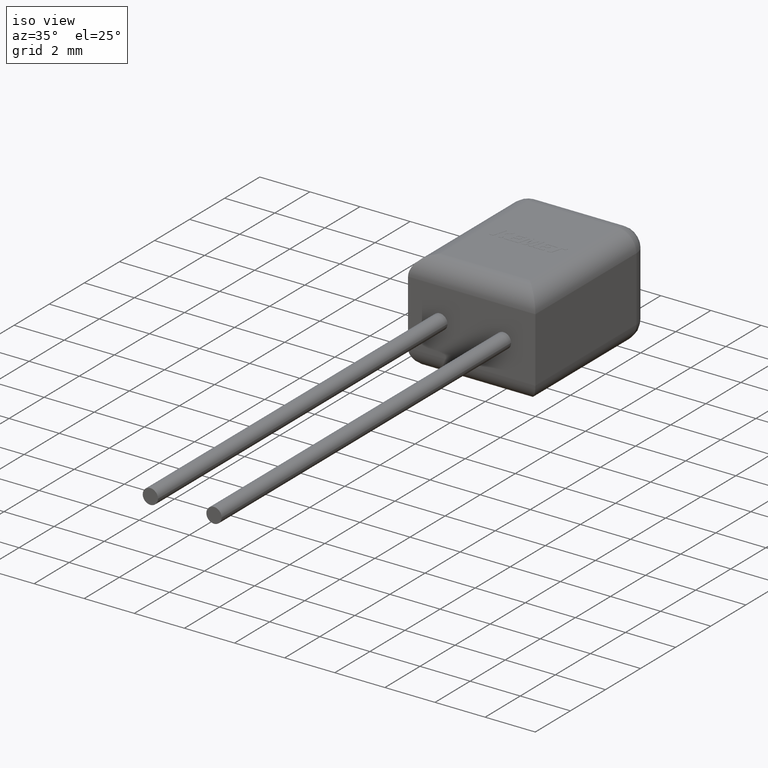
[diagram: clean part render]
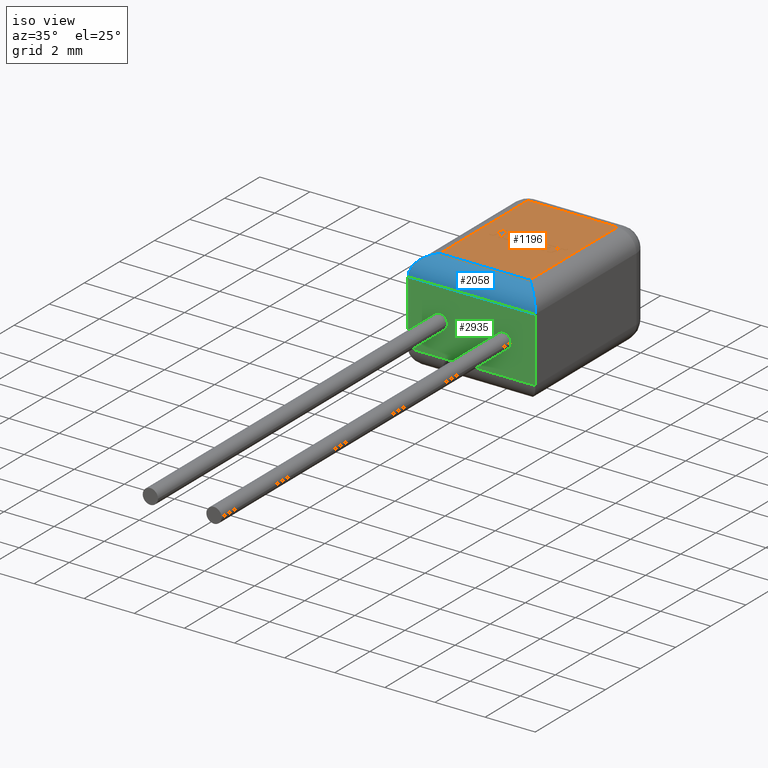
[diagram: same view with three faces highlighted in distinct colors, each labeled with its STEP entity id]
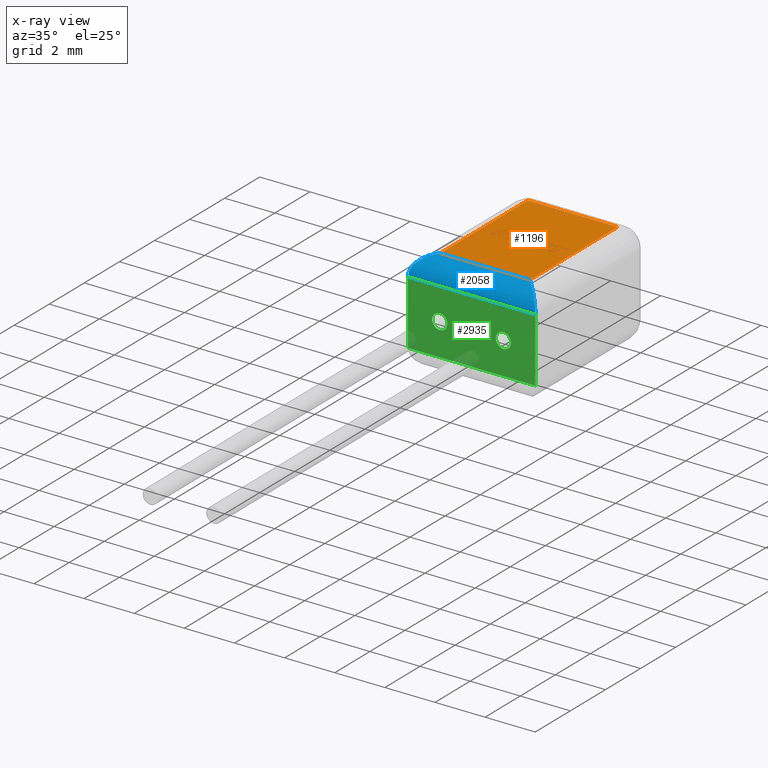
[diagram: x-ray of the same camera — body ghosted, the three highlighted faces saturated]
A machine part, iso view with three faces highlighted in distinct colors.
The next image is the same camera in x-ray (body ghosted, the three faces saturated) — at least one of them is partly hidden behind the body in this view.
Their STEP definitions:

[orange] entity #1196 — the highlighted planar face has unit normal (0, 0, -1).
#74 = EDGE_CURVE ( 'NONE', #2455, #2540, #3539, .T. ) ;
#107 = VERTEX_POINT ( 'NONE', #249 ) ;
#171 = LINE ( 'NONE', #1266, #1117 ) ;
#211 = AXIS2_PLACEMENT_3D ( 'NONE', #2613, #2057, #2303 ) ;
#249 = CARTESIAN_POINT ( 'NONE',  ( -4.330000000000000100, 5.755759999999998700, 4.070000000000000300 ) ) ;
#268 = FACE_OUTER_BOUND ( 'NONE', #2940, .T. ) ;
#492 = VERTEX_POINT ( 'NONE', #2757 ) ;
#628 = EDGE_CURVE ( 'NONE', #492, #107, #1656, .T. ) ;
#646 = LINE ( 'NONE', #1183, #3622 ) ;
#810 = ORIENTED_EDGE ( 'NONE', *, *, #628, .T. ) ;
#909 = ORIENTED_EDGE ( 'NONE', *, *, #1618, .T. ) ;
#1117 = VECTOR ( 'NONE', #2722, 1000.000000000000000 ) ;
#1141 = ORIENTED_EDGE ( 'NONE', *, *, #2892, .T. ) ;
#1183 = CARTESIAN_POINT ( 'NONE',  ( -4.330000000000000100, 5.772847946265752500E-016, 4.070000000000000300 ) ) ;
#1196 = ADVANCED_FACE ( 'NONE', ( #268 ), #2327, .F. ) ;
#1266 = CARTESIAN_POINT ( 'NONE',  ( -0.7500000000000000000, 0.0000000000000000000, 4.070000000000000300 ) ) ;
#1450 = DIRECTION ( 'NONE',  ( 1.000000000000000000, 1.224646799147353200E-016, 0.0000000000000000000 ) ) ;
#1618 = EDGE_CURVE ( 'NONE', #107, #2455, #646, .T. ) ;
#1656 = LINE ( 'NONE', #2932, #2163 ) ;
#1731 = CARTESIAN_POINT ( 'NONE',  ( -9.184850993605149700E-017, 0.7500000000000000000, 4.070000000000000300 ) ) ;
#2029 = DIRECTION ( 'NONE',  ( -1.333221234703407000E-016, -1.000000000000000000, 0.0000000000000000000 ) ) ;
#2055 = CARTESIAN_POINT ( 'NONE',  ( -4.330000000000000100, 0.7499999999999994400, 4.070000000000000300 ) ) ;
#2057 = DIRECTION ( 'NONE',  ( 0.0000000000000000000, 0.0000000000000000000, -1.000000000000000000 ) ) ;
#2112 = CARTESIAN_POINT ( 'NONE',  ( -0.7500000000000000000, 0.7499999999999998900, 4.070000000000000300 ) ) ;
#2163 = VECTOR ( 'NONE', #3228, 1000.000000000000000 ) ;
#2303 = DIRECTION ( 'NONE',  ( -1.000000000000000000, 0.0000000000000000000, -0.0000000000000000000 ) ) ;
#2327 = PLANE ( 'NONE',  #211 ) ;
#2455 = VERTEX_POINT ( 'NONE', #2055 ) ;
#2540 = VERTEX_POINT ( 'NONE', #2112 ) ;
#2613 = CARTESIAN_POINT ( 'NONE',  ( 0.0000000000000000000, 0.0000000000000000000, 4.070000000000000300 ) ) ;
#2722 = DIRECTION ( 'NONE',  ( 0.0000000000000000000, 1.000000000000000000, 0.0000000000000000000 ) ) ;
#2754 = VECTOR ( 'NONE', #1450, 1000.000000000000000 ) ;
#2757 = CARTESIAN_POINT ( 'NONE',  ( -0.7500000000000000000, 5.755759999999998700, 4.070000000000000300 ) ) ;
#2892 = EDGE_CURVE ( 'NONE', #2540, #492, #171, .T. ) ;
#2932 = CARTESIAN_POINT ( 'NONE',  ( 0.0000000000000000000, 5.755759999999998700, 4.070000000000000300 ) ) ;
#2940 = EDGE_LOOP ( 'NONE', ( #909, #3556, #1141, #810 ) ) ;
#3228 = DIRECTION ( 'NONE',  ( -1.000000000000000000, 0.0000000000000000000, 0.0000000000000000000 ) ) ;
#3539 = LINE ( 'NONE', #1731, #2754 ) ;
#3556 = ORIENTED_EDGE ( 'NONE', *, *, #74, .T. ) ;
#3622 = VECTOR ( 'NONE', #2029, 1000.000000000000000 ) ;

[blue] entity #2058 — the highlighted cylindrical surface (edge-blend (fillet) strip) has radius 0.75 mm, axis along (1, 0, 0).
#74 = EDGE_CURVE ( 'NONE', #2455, #2540, #3539, .T. ) ;
#81 = EDGE_CURVE ( 'NONE', #2141, #3475, #2578, .T. ) ;
#163 = CARTESIAN_POINT ( 'NONE',  ( -9.184850993605149700E-017, 0.7500000000000000000, 3.320000000000000700 ) ) ;
#438 = CARTESIAN_POINT ( 'NONE',  ( -5.080000000000000100, -6.221205739668554300E-016, 3.320000000000000700 ) ) ;
#517 = AXIS2_PLACEMENT_3D ( 'NONE', #163, #2489, #3274 ) ;
#545 = CARTESIAN_POINT ( 'NONE',  ( -4.330000000000000100, 0.7499999999999994400, 4.070000000000000300 ) ) ;
#554 = CARTESIAN_POINT ( 'NONE',  ( -5.080000000000000100, -5.421010862427522200E-016, 3.759339828220179300 ) ) ;
#579 = CARTESIAN_POINT ( 'NONE',  ( -5.080000000000000100, -6.221205739668554300E-016, 3.320000000000000700 ) ) ;
#600 = CARTESIAN_POINT ( 'NONE',  ( 0.0000000000000000000, 0.0000000000000000000, 3.320000000000000700 ) ) ;
#992 = ORIENTED_EDGE ( 'NONE', *, *, #3229, .T. ) ;
#1168 = CARTESIAN_POINT ( 'NONE',  ( -0.3106601717798211900, 0.3106601717798211400, 4.070000000000000300 ) ) ;
#1333 = EDGE_LOOP ( 'NONE', ( #992, #3597, #2475, #2603 ) ) ;
#1450 = DIRECTION ( 'NONE',  ( 1.000000000000000000, 1.224646799147353200E-016, 0.0000000000000000000 ) ) ;
#1646 =( BOUNDED_CURVE ( )  B_SPLINE_CURVE ( 3, ( #600, #2374, #1168, #2610 ),
 .UNSPECIFIED., .F., .T. ) 
 B_SPLINE_CURVE_WITH_KNOTS ( ( 4, 4 ),
 ( 3.141592653589793100, 4.712388980384689700 ),
 .UNSPECIFIED. ) 
 CURVE ( )  GEOMETRIC_REPRESENTATION_ITEM ( )  RATIONAL_B_SPLINE_CURVE ( ( 1.000000000000000000, 0.8047378541243649400, 0.8047378541243649400, 1.000000000000000000 ) ) 
 REPRESENTATION_ITEM ( '' )  );
#1661 = EDGE_CURVE ( 'NONE', #2141, #2540, #1646, .T. ) ;
#1698 = CYLINDRICAL_SURFACE ( 'NONE', #517, 0.7500000000000000000 ) ;
#1731 = CARTESIAN_POINT ( 'NONE',  ( -9.184850993605149700E-017, 0.7500000000000000000, 4.070000000000000300 ) ) ;
#1901 = VECTOR ( 'NONE', #3705, 1000.000000000000000 ) ;
#2036 = CARTESIAN_POINT ( 'NONE',  ( 0.0000000000000000000, 0.0000000000000000000, 3.320000000000000700 ) ) ;
#2055 = CARTESIAN_POINT ( 'NONE',  ( -4.330000000000000100, 0.7499999999999994400, 4.070000000000000300 ) ) ;
#2058 = ADVANCED_FACE ( 'NONE', ( #2197 ), #1698, .T. ) ;
#2112 = CARTESIAN_POINT ( 'NONE',  ( -0.7500000000000000000, 0.7499999999999998900, 4.070000000000000300 ) ) ;
#2141 = VERTEX_POINT ( 'NONE', #3644 ) ;
#2197 = FACE_OUTER_BOUND ( 'NONE', #1333, .T. ) ;
#2374 = CARTESIAN_POINT ( 'NONE',  ( 5.380361143677898200E-017, -5.380361143677898200E-017, 3.759339828220179300 ) ) ;
#2455 = VERTEX_POINT ( 'NONE', #2055 ) ;
#2475 = ORIENTED_EDGE ( 'NONE', *, *, #1661, .T. ) ;
#2489 = DIRECTION ( 'NONE',  ( 1.000000000000000000, 1.224646799147353200E-016, 0.0000000000000000000 ) ) ;
#2540 = VERTEX_POINT ( 'NONE', #2112 ) ;
#2578 = LINE ( 'NONE', #2036, #1901 ) ;
#2587 = CARTESIAN_POINT ( 'NONE',  ( -4.769339828220179100, 0.3106601717798208600, 4.070000000000000300 ) ) ;
#2603 = ORIENTED_EDGE ( 'NONE', *, *, #74, .F. ) ;
#2610 = CARTESIAN_POINT ( 'NONE',  ( -0.7500000000000000000, 0.7499999999999998900, 4.070000000000000300 ) ) ;
#2754 = VECTOR ( 'NONE', #1450, 1000.000000000000000 ) ;
#3229 = EDGE_CURVE ( 'NONE', #2455, #3475, #3341, .T. ) ;
#3274 = DIRECTION ( 'NONE',  ( -1.224646799147353200E-016, 1.000000000000000000, 0.0000000000000000000 ) ) ;
#3341 =( BOUNDED_CURVE ( )  B_SPLINE_CURVE ( 3, ( #545, #2587, #554, #579 ),
 .UNSPECIFIED., .F., .F. ) 
 B_SPLINE_CURVE_WITH_KNOTS ( ( 4, 4 ),
 ( 4.712388980384689700, 6.283185307179586200 ),
 .UNSPECIFIED. ) 
 CURVE ( )  GEOMETRIC_REPRESENTATION_ITEM ( )  RATIONAL_B_SPLINE_CURVE ( ( 1.000000000000000000, 0.8047378541243649400, 0.8047378541243649400, 1.000000000000000000 ) ) 
 REPRESENTATION_ITEM ( '' )  );
#3475 = VERTEX_POINT ( 'NONE', #438 ) ;
#3539 = LINE ( 'NONE', #1731, #2754 ) ;
#3597 = ORIENTED_EDGE ( 'NONE', *, *, #81, .F. ) ;
#3644 = CARTESIAN_POINT ( 'NONE',  ( 0.0000000000000000000, 0.0000000000000000000, 3.320000000000000700 ) ) ;
#3705 = DIRECTION ( 'NONE',  ( -1.000000000000000000, -1.224646799147353200E-016, -0.0000000000000000000 ) ) ;

[green] entity #2935 — the highlighted planar face has unit normal (-0, 1, 0).
#5 = EDGE_CURVE ( 'NONE', #876, #489, #1856, .T. ) ;
#81 = EDGE_CURVE ( 'NONE', #2141, #3475, #2578, .T. ) ;
#102 = ORIENTED_EDGE ( 'NONE', *, *, #81, .T. ) ;
#165 = CARTESIAN_POINT ( 'NONE',  ( -1.270000000000001100, -4.665904304751415500E-016, 2.035000000000000100 ) ) ;
#225 = DIRECTION ( 'NONE',  ( -1.000000000000000000, 1.224646799147353900E-016, 0.0000000000000000000 ) ) ;
#279 = ORIENTED_EDGE ( 'NONE', *, *, #1152, .T. ) ;
#304 = DIRECTION ( 'NONE',  ( -0.0000000000000000000, -0.0000000000000000000, -1.000000000000000000 ) ) ;
#363 = VERTEX_POINT ( 'NONE', #416 ) ;
#393 = FACE_BOUND ( 'NONE', #3715, .T. ) ;
#416 = CARTESIAN_POINT ( 'NONE',  ( -4.115000000000000200, -3.735172737399428900E-017, 2.035000000000000100 ) ) ;
#430 = PLANE ( 'NONE',  #1187 ) ;
#435 = VECTOR ( 'NONE', #3313, 1000.000000000000000 ) ;
#438 = CARTESIAN_POINT ( 'NONE',  ( -5.080000000000000100, -6.221205739668554300E-016, 3.320000000000000700 ) ) ;
#489 = VERTEX_POINT ( 'NONE', #2770 ) ;
#577 = EDGE_LOOP ( 'NONE', ( #1048, #2472 ) ) ;
#702 = CARTESIAN_POINT ( 'NONE',  ( -3.810000000000000100, 0.0000000000000000000, 2.035000000000000100 ) ) ;
#713 = ORIENTED_EDGE ( 'NONE', *, *, #2968, .F. ) ;
#736 = DIRECTION ( 'NONE',  ( 1.224646799147353200E-016, 1.000000000000000000, -0.0000000000000000000 ) ) ;
#819 = VERTEX_POINT ( 'NONE', #2977 ) ;
#876 = VERTEX_POINT ( 'NONE', #2505 ) ;
#881 = EDGE_CURVE ( 'NONE', #489, #876, #3460, .T. ) ;
#924 = LINE ( 'NONE', #948, #1435 ) ;
#948 = CARTESIAN_POINT ( 'NONE',  ( 0.0000000000000000000, 0.0000000000000000000, 4.070000000000000300 ) ) ;
#1048 = ORIENTED_EDGE ( 'NONE', *, *, #881, .T. ) ;
#1092 = DIRECTION ( 'NONE',  ( 1.224646799147353200E-016, -1.000000000000000000, -0.0000000000000000000 ) ) ;
#1100 = ORIENTED_EDGE ( 'NONE', *, *, #1493, .F. ) ;
#1152 = EDGE_CURVE ( 'NONE', #3475, #819, #1949, .T. ) ;
#1159 = FACE_OUTER_BOUND ( 'NONE', #2600, .T. ) ;
#1187 = AXIS2_PLACEMENT_3D ( 'NONE', #2507, #3336, #1332 ) ;
#1322 = CARTESIAN_POINT ( 'NONE',  ( 0.0000000000000000000, 0.0000000000000000000, 0.7499999999999997800 ) ) ;
#1332 = DIRECTION ( 'NONE',  ( -1.000000000000000000, -1.224646799147353200E-016, 0.0000000000000000000 ) ) ;
#1343 = DIRECTION ( 'NONE',  ( 1.224646799147353200E-016, -1.000000000000000000, -0.0000000000000000000 ) ) ;
#1416 = CARTESIAN_POINT ( 'NONE',  ( -3.810000000000000100, 0.0000000000000000000, 2.035000000000000100 ) ) ;
#1417 = CARTESIAN_POINT ( 'NONE',  ( -3.504999999999999900, 3.735172737399428900E-017, 2.035000000000000100 ) ) ;
#1420 = CARTESIAN_POINT ( 'NONE',  ( -5.080000000000000100, -6.221205739668554300E-016, 4.070000000000000300 ) ) ;
#1435 = VECTOR ( 'NONE', #1815, 1000.000000000000000 ) ;
#1453 = AXIS2_PLACEMENT_3D ( 'NONE', #1416, #1092, #3104 ) ;
#1493 = EDGE_CURVE ( 'NONE', #3694, #363, #2122, .T. ) ;
#1815 = DIRECTION ( 'NONE',  ( -0.0000000000000000000, -0.0000000000000000000, -1.000000000000000000 ) ) ;
#1856 = CIRCLE ( 'NONE', #2571, 0.3050000000000001600 ) ;
#1901 = VECTOR ( 'NONE', #3705, 1000.000000000000000 ) ;
#1949 = LINE ( 'NONE', #1420, #3636 ) ;
#1991 = LINE ( 'NONE', #1322, #435 ) ;
#2030 = FACE_BOUND ( 'NONE', #577, .T. ) ;
#2036 = CARTESIAN_POINT ( 'NONE',  ( 0.0000000000000000000, 0.0000000000000000000, 3.320000000000000700 ) ) ;
#2122 = CIRCLE ( 'NONE', #1453, 0.3050000000000006000 ) ;
#2141 = VERTEX_POINT ( 'NONE', #3644 ) ;
#2346 = ORIENTED_EDGE ( 'NONE', *, *, #3414, .F. ) ;
#2472 = ORIENTED_EDGE ( 'NONE', *, *, #5, .T. ) ;
#2473 = AXIS2_PLACEMENT_3D ( 'NONE', #165, #3066, #3604 ) ;
#2505 = CARTESIAN_POINT ( 'NONE',  ( -0.9650000000000009700, -5.039421578491359000E-016, 2.035000000000000100 ) ) ;
#2507 = CARTESIAN_POINT ( 'NONE',  ( 0.0000000000000000000, 0.0000000000000000000, 4.070000000000000300 ) ) ;
#2571 = AXIS2_PLACEMENT_3D ( 'NONE', #3071, #736, #225 ) ;
#2578 = LINE ( 'NONE', #2036, #1901 ) ;
#2600 = EDGE_LOOP ( 'NONE', ( #2346, #102, #279, #2648 ) ) ;
#2640 = VERTEX_POINT ( 'NONE', #3049 ) ;
#2648 = ORIENTED_EDGE ( 'NONE', *, *, #3060, .T. ) ;
#2770 = CARTESIAN_POINT ( 'NONE',  ( -1.575000000000001300, -4.292387031011472500E-016, 2.035000000000000100 ) ) ;
#2836 = CIRCLE ( 'NONE', #2972, 0.3050000000000006000 ) ;
#2935 = ADVANCED_FACE ( 'NONE', ( #2030, #1159, #393 ), #430, .F. ) ;
#2968 = EDGE_CURVE ( 'NONE', #363, #3694, #2836, .T. ) ;
#2972 = AXIS2_PLACEMENT_3D ( 'NONE', #702, #1343, #3085 ) ;
#2977 = CARTESIAN_POINT ( 'NONE',  ( -5.080000000000000100, -6.221205739668554300E-016, 0.7499999999999997800 ) ) ;
#3049 = CARTESIAN_POINT ( 'NONE',  ( 0.0000000000000000000, 0.0000000000000000000, 0.7499999999999997800 ) ) ;
#3060 = EDGE_CURVE ( 'NONE', #819, #2640, #1991, .T. ) ;
#3066 = DIRECTION ( 'NONE',  ( 1.224646799147353200E-016, 1.000000000000000000, -0.0000000000000000000 ) ) ;
#3071 = CARTESIAN_POINT ( 'NONE',  ( -1.270000000000001100, -4.665904304751415500E-016, 2.035000000000000100 ) ) ;
#3085 = DIRECTION ( 'NONE',  ( -1.000000000000000000, -1.224646799147351200E-016, 0.0000000000000000000 ) ) ;
#3104 = DIRECTION ( 'NONE',  ( -1.000000000000000000, -1.224646799147351200E-016, 0.0000000000000000000 ) ) ;
#3313 = DIRECTION ( 'NONE',  ( 1.000000000000000000, 1.224646799147353200E-016, 0.0000000000000000000 ) ) ;
#3336 = DIRECTION ( 'NONE',  ( -1.224646799147353200E-016, 1.000000000000000000, 0.0000000000000000000 ) ) ;
#3414 = EDGE_CURVE ( 'NONE', #2141, #2640, #924, .T. ) ;
#3460 = CIRCLE ( 'NONE', #2473, 0.3050000000000001600 ) ;
#3475 = VERTEX_POINT ( 'NONE', #438 ) ;
#3604 = DIRECTION ( 'NONE',  ( -1.000000000000000000, 1.224646799147353900E-016, 0.0000000000000000000 ) ) ;
#3636 = VECTOR ( 'NONE', #304, 1000.000000000000000 ) ;
#3644 = CARTESIAN_POINT ( 'NONE',  ( 0.0000000000000000000, 0.0000000000000000000, 3.320000000000000700 ) ) ;
#3694 = VERTEX_POINT ( 'NONE', #1417 ) ;
#3705 = DIRECTION ( 'NONE',  ( -1.000000000000000000, -1.224646799147353200E-016, -0.0000000000000000000 ) ) ;
#3715 = EDGE_LOOP ( 'NONE', ( #713, #1100 ) ) ;